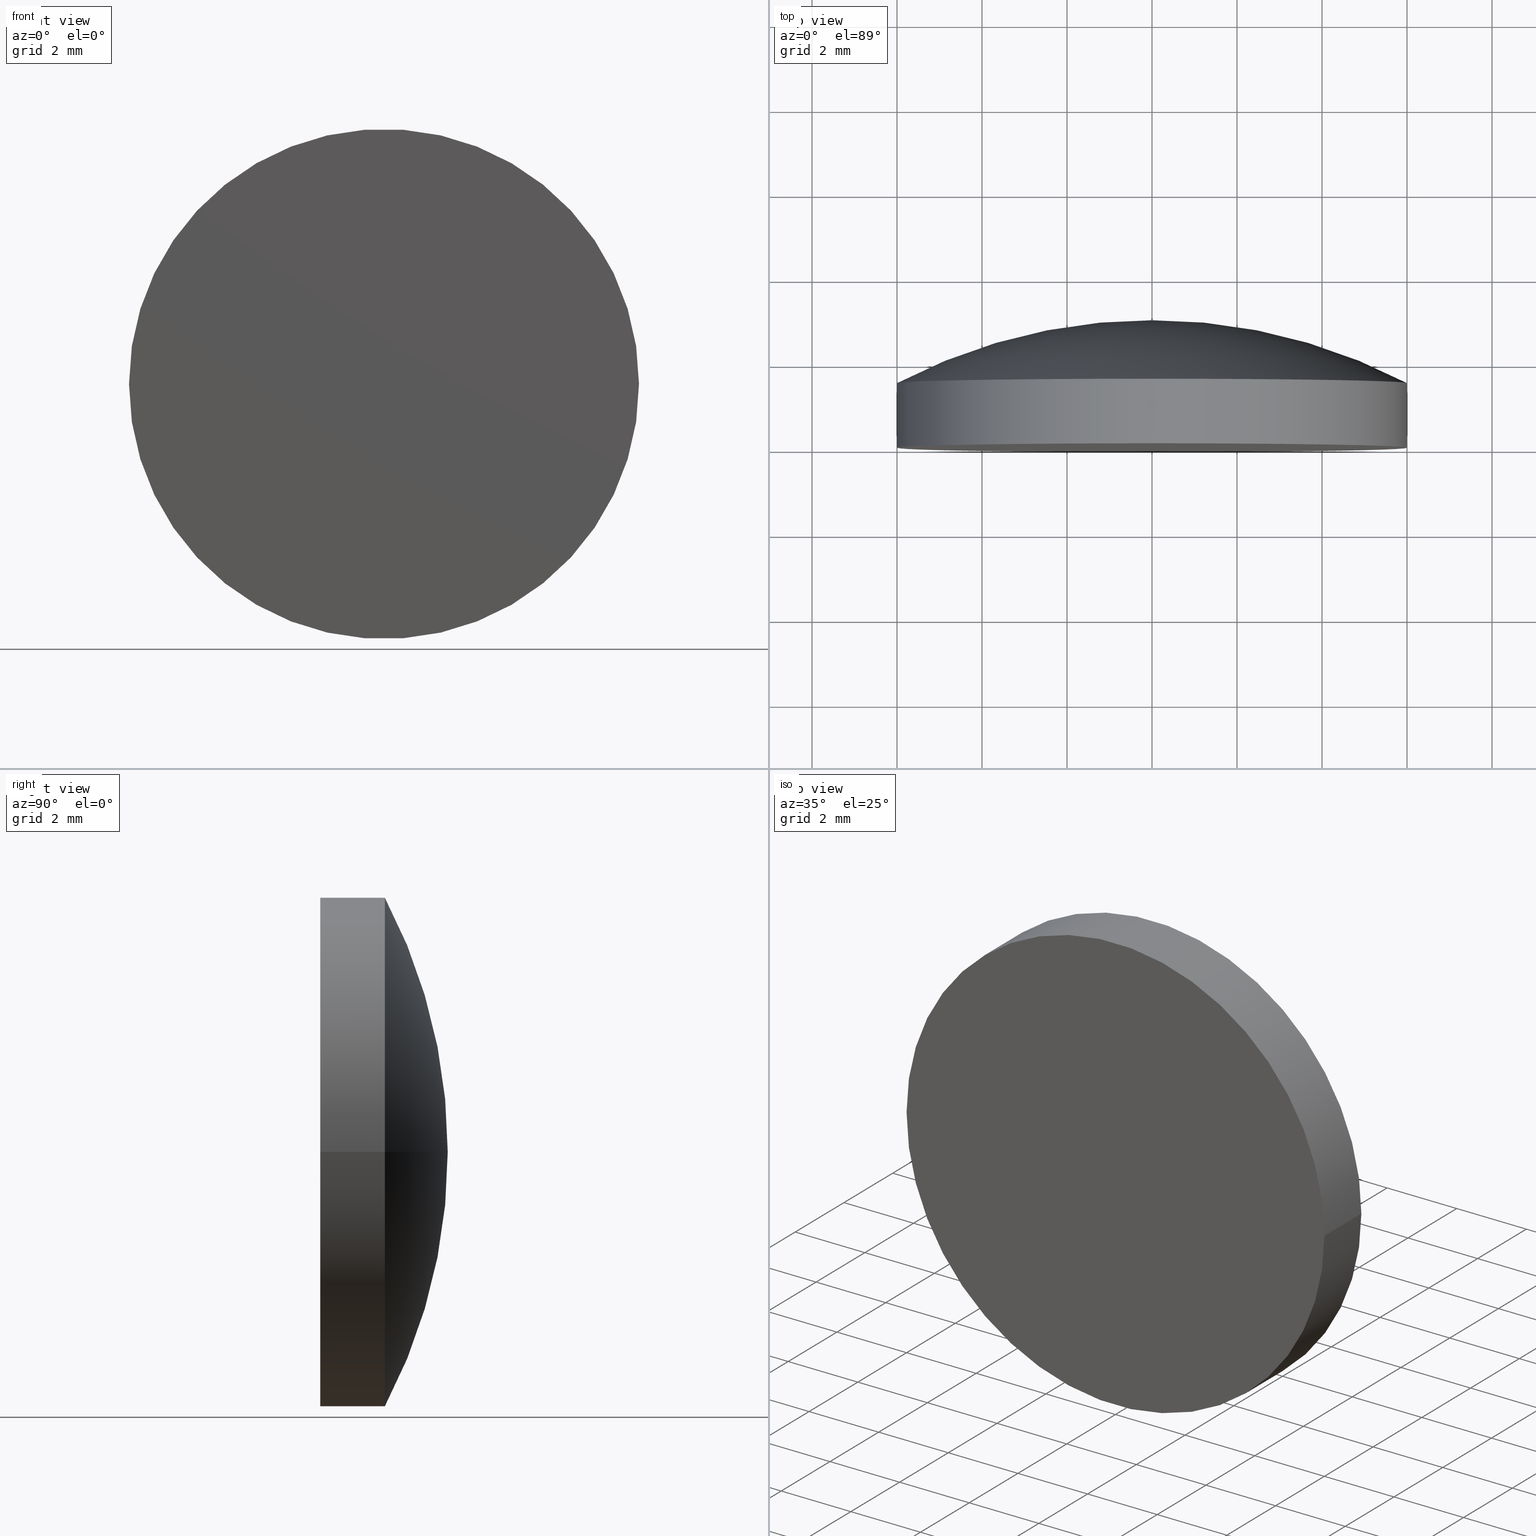
[diagram: canonical four-view strip — front | top / right | iso, engineering-drawing reading convention]
A machine part, canonical four-view strip (front | top / right | iso — engineering-drawing reading convention). The complete STEP part file that produces these views, byte-faithful:
ISO-10303-21;
HEADER;
FILE_DESCRIPTION (( 'STEP AP203' ),
    '1' );
FILE_NAME ('100590.STEP',
    '2024-05-10T01:41:21',
    ( '' ),
    ( '' ),
    'SwSTEP 2.0',
    'SolidWorks 2020',
    '' );
FILE_SCHEMA (( 'CONFIG_CONTROL_DESIGN' ));
ENDSEC;

DATA;
#1 = DATE_AND_TIME ( #108, #200 ) ;
#2 = PRODUCT_DEFINITION_FORMATION_WITH_SPECIFIED_SOURCE ( '�κ�', '', #109, .NOT_KNOWN. ) ;
#3 = TOROIDAL_SURFACE ( 'NONE', #74, -0.001933297626474807631, 12.91000000000000014 ) ;
#4 = EDGE_CURVE ( 'NONE', #38, #37, #21, .T. ) ;
#5 = CYLINDRICAL_SURFACE ( 'NONE', #139, 6.000000000000000000 ) ;
#6 = CIRCLE ( 'NONE', #154, 6.000000000000000000 ) ;
#7 = CARTESIAN_POINT ( 'NONE',  ( 1.789642115925866215E-16, 3.000000000000000000, 0.000000000000000000 ) ) ;
#8 = EDGE_LOOP ( 'NONE', ( #153, #163, #55 ) ) ;
#9 = CIRCLE ( 'NONE', #120, 6.000000000000000000 ) ;
#10 = EDGE_CURVE ( 'NONE', #53, #38, #113, .T. ) ;
#11 = DIRECTION ( 'NONE',  ( -1.000000000000000000, 7.228014483236695816E-17, 0.000000000000000000 ) ) ;
#12 = FACE_OUTER_BOUND ( 'NONE', #138, .T. ) ;
#13 = PERSON_AND_ORGANIZATION_ROLE ( 'creator' ) ;
#14 = COORDINATED_UNIVERSAL_TIME_OFFSET ( 8, 0, .AHEAD. ) ;
#15 = MECHANICAL_CONTEXT ( 'NONE', #23, 'mechanical' ) ;
#16 = PERSON_AND_ORGANIZATION_ROLE ( 'creator' ) ;
#17 = UNCERTAINTY_MEASURE_WITH_UNIT (LENGTH_MEASURE( 1.000000000000000082E-05 ), #145, 'distance_accuracy_value', 'NONE');
#18 = TOROIDAL_SURFACE ( 'NONE', #79, -0.001933297626474807631, 12.91000000000000014 ) ;
#19 = PERSON_AND_ORGANIZATION_ROLE ( 'design_supplier' ) ;
#20 = AXIS2_PLACEMENT_3D ( 'NONE', #179, #25, #152 ) ;
#21 = LINE ( 'NONE', #24, #33 ) ;
#22 = ORIENTED_EDGE ( 'NONE', *, *, #10, .F. ) ;
#23 = APPLICATION_CONTEXT ( 'configuration controlled 3d designs of mechanical parts and assemblies' ) ;
#24 = CARTESIAN_POINT ( 'NONE',  ( -6.000000000000000000, 3.000000000000000444, 0.000000000000000000 ) ) ;
#25 = DIRECTION ( 'NONE',  ( -5.965473719752887796E-17, -1.000000000000000000, 0.000000000000000000 ) ) ;
#26 = EDGE_CURVE ( 'NONE', #53, #97, #83, .T. ) ;
#27 = CIRCLE ( 'NONE', #167, 6.000000000000000000 ) ;
#28 = CARTESIAN_POINT ( 'NONE',  ( 9.067520054024382547E-17, 1.519999999999998685, 0.000000000000000000 ) ) ;
#29 = CARTESIAN_POINT ( 'NONE',  ( 1.789642115925866215E-16, 3.000000000000000000, 0.000000000000000000 ) ) ;
#30 =( GEOMETRIC_REPRESENTATION_CONTEXT ( 3 ) GLOBAL_UNCERTAINTY_ASSIGNED_CONTEXT ( ( #17 ) ) GLOBAL_UNIT_ASSIGNED_CONTEXT ( ( #145, #85, #142 ) ) REPRESENTATION_CONTEXT ( 'NONE', 'WORKASPACE' ) );
#31 = FACE_OUTER_BOUND ( 'NONE', #117, .T. ) ;
#32 = APPLICATION_PROTOCOL_DEFINITION ( 'international standard', 'config_control_design', 1994, #49 ) ;
#33 = VECTOR ( 'NONE', #135, 1000.000000000000000 ) ;
#34 = PRODUCT_DEFINITION_SHAPE ( 'NONE', 'NONE',  #160 ) ;
#35 = CC_DESIGN_DATE_AND_TIME_ASSIGNMENT ( #201, #75, ( #160 ) ) ;
#36 = ADVANCED_FACE ( 'NONE', ( #181 ), #5, .T. ) ;
#37 = VERTEX_POINT ( 'NONE', #71 ) ;
#38 = VERTEX_POINT ( 'NONE', #58 ) ;
#39 = ORIENTED_EDGE ( 'NONE', *, *, #180, .F. ) ;
#40 = DIRECTION ( 'NONE',  ( 5.965473719752887796E-17, 1.000000000000000000, -0.000000000000000000 ) ) ;
#41 = PERSON_AND_ORGANIZATION ( #47, #156 ) ;
#42 = DIRECTION ( 'NONE',  ( 5.965473719752887796E-17, 1.000000000000000000, -0.000000000000000000 ) ) ;
#43 = PERSON_AND_ORGANIZATION ( #47, #156 ) ;
#44 = LOCAL_TIME ( 9, 41, 21.00000000000000000, #94 ) ;
#45 = CALENDAR_DATE ( 2024, 10, 5 ) ;
#46 = COORDINATED_UNIVERSAL_TIME_OFFSET ( 8, 0, .AHEAD. ) ;
#47 = PERSON ( 'δָ��', 'δָ��', 'δָ��', ('δָ��'), ('δָ��'), ('δָ��') ) ;
#48 = AXIS2_PLACEMENT_3D ( 'NONE', #189, #137, #88 ) ;
#49 = APPLICATION_CONTEXT ( 'configuration controlled 3d designs of mechanical parts and assemblies' ) ;
#50 = CC_DESIGN_PERSON_AND_ORGANIZATION_ASSIGNMENT ( #43, #77, ( #109 ) ) ;
#51 = SECURITY_CLASSIFICATION_LEVEL ( 'unclassified' ) ;
#52 = APPROVAL_PERSON_ORGANIZATION ( #184, #197, #158 ) ;
#53 = VERTEX_POINT ( 'NONE', #70 ) ;
#54 = CIRCLE ( 'NONE', #78, 12.91000000000000014 ) ;
#55 = ORIENTED_EDGE ( 'NONE', *, *, #73, .F. ) ;
#56 = LOCAL_TIME ( 9, 41, 21.00000000000000000, #90 ) ;
#57 = CARTESIAN_POINT ( 'NONE',  ( -7.222237291452134449E-32, -1.301042606982605321E-15, 0.000000000000000000 ) ) ;
#58 = CARTESIAN_POINT ( 'NONE',  ( -6.000000000000000000, -9.431141837974319298E-16, 0.000000000000000000 ) ) ;
#59 = DIRECTION ( 'NONE',  ( -1.000000000000000000, 7.228014483236695816E-17, 0.000000000000000000 ) ) ;
#60 = DIRECTION ( 'NONE',  ( 1.000000000000000000, 0.000000000000000000, 0.000000000000000000 ) ) ;
#61 = CARTESIAN_POINT ( 'NONE',  ( -5.908054807098744865E-16, -9.909999855242457301, 0.000000000000000000 ) ) ;
#62 = CARTESIAN_POINT ( 'NONE',  ( 0.000000000000000000, 0.000000000000000000, 0.000000000000000000 ) ) ;
#63 = APPROVAL_STATUS ( 'not_yet_approved' ) ;
#64 = APPROVAL_DATE_TIME ( #157, #84 ) ;
#65 = ADVANCED_FACE ( 'NONE', ( #188 ), #116, .T. ) ;
#66 = APPROVAL_PERSON_ORGANIZATION ( #41, #84, #171 ) ;
#67 = DATE_AND_TIME ( #186, #172 ) ;
#68 = AXIS2_PLACEMENT_3D ( 'NONE', #57, #96, #162 ) ;
#69 = AXIS2_PLACEMENT_3D ( 'NONE', #62, #169, #60 ) ;
#70 = CARTESIAN_POINT ( 'NONE',  ( 6.000000000000000000, -1.658971030167778712E-15, 7.347880794884119736E-16 ) ) ;
#71 = CARTESIAN_POINT ( 'NONE',  ( -6.000000000000000000, 1.519999999999998908, 0.000000000000000000 ) ) ;
#72 = ORIENTED_EDGE ( 'NONE', *, *, #26, .F. ) ;
#73 = EDGE_CURVE ( 'NONE', #37, #191, #140, .T. ) ;
#74 = AXIS2_PLACEMENT_3D ( 'NONE', #107, #193, #143 ) ;
#75 = DATE_TIME_ROLE ( 'creation_date' ) ;
#76 = ADVANCED_BREP_SHAPE_REPRESENTATION ( '100590', ( #123, #69 ), #30 ) ;
#77 = PERSON_AND_ORGANIZATION_ROLE ( 'design_owner' ) ;
#78 = AXIS2_PLACEMENT_3D ( 'NONE', #128, #125, #199 ) ;
#79 = AXIS2_PLACEMENT_3D ( 'NONE', #61, #42, #103 ) ;
#80 = EDGE_CURVE ( 'NONE', #97, #37, #6, .T. ) ;
#81 = PERSON_AND_ORGANIZATION ( #47, #156 ) ;
#82 = ORIENTED_EDGE ( 'NONE', *, *, #106, .F. ) ;
#83 = LINE ( 'NONE', #149, #148 ) ;
#84 = APPROVAL ( #104, 'δָ��' ) ;
#85 =( NAMED_UNIT ( * ) PLANE_ANGLE_UNIT ( ) SI_UNIT ( $, .RADIAN. ) );
#86 = ORIENTED_EDGE ( 'NONE', *, *, #10, .T. ) ;
#87 = DIRECTION ( 'NONE',  ( 5.965473719752887796E-17, 1.000000000000000000, -0.000000000000000000 ) ) ;
#88 = DIRECTION ( 'NONE',  ( -1.000000000000000000, 0.000000000000000000, 0.000000000000000000 ) ) ;
#89 = LOCAL_TIME ( 9, 41, 21.00000000000000000, #14 ) ;
#90 = COORDINATED_UNIVERSAL_TIME_OFFSET ( 8, 0, .AHEAD. ) ;
#91 = CC_DESIGN_PERSON_AND_ORGANIZATION_ASSIGNMENT ( #147, #19, ( #2 ) ) ;
#92 = APPLICATION_PROTOCOL_DEFINITION ( 'international standard', 'config_control_design', 1994, #23 ) ;
#93 = DIRECTION ( 'NONE',  ( 5.965473719752887796E-17, 1.000000000000000000, -0.000000000000000000 ) ) ;
#94 = COORDINATED_UNIVERSAL_TIME_OFFSET ( 8, 0, .AHEAD. ) ;
#95 = PERSON_AND_ORGANIZATION ( #47, #156 ) ;
#96 = DIRECTION ( 'NONE',  ( 5.965473719752887796E-17, 1.000000000000000000, -0.000000000000000000 ) ) ;
#97 = VERTEX_POINT ( 'NONE', #183 ) ;
#98 = ORIENTED_EDGE ( 'NONE', *, *, #198, .F. ) ;
#99 = DIRECTION ( 'NONE',  ( -1.000000000000000000, 7.228014483236695816E-17, 0.000000000000000000 ) ) ;
#100 = ADVANCED_FACE ( 'NONE', ( #12 ), #194, .T. ) ;
#101 = CARTESIAN_POINT ( 'NONE',  ( 1.789642115925866215E-16, 3.000000000000000000, 0.000000000000000000 ) ) ;
#102 = CC_DESIGN_DATE_AND_TIME_ASSIGNMENT ( #67, #146, ( #118 ) ) ;
#103 = DIRECTION ( 'NONE',  ( -1.000000000000000000, 5.965473719752887796E-17, 0.000000000000000000 ) ) ;
#104 = APPROVAL_STATUS ( 'not_yet_approved' ) ;
#105 = APPROVAL_PERSON_ORGANIZATION ( #81, #151, #133 ) ;
#106 = EDGE_CURVE ( 'NONE', #37, #97, #27, .T. ) ;
#107 = CARTESIAN_POINT ( 'NONE',  ( -5.908054807098744865E-16, -9.909999855242457301, 0.000000000000000000 ) ) ;
#108 = CALENDAR_DATE ( 2024, 10, 5 ) ;
#109 = PRODUCT ( '100590', '100590', '', ( #15 ) ) ;
#110 = CALENDAR_DATE ( 2024, 10, 5 ) ;
#111 = PERSON_AND_ORGANIZATION ( #47, #156 ) ;
#112 = PRODUCT_RELATED_PRODUCT_CATEGORY ( 'detail', '', ( #109 ) ) ;
#113 = CIRCLE ( 'NONE', #68, 6.000000000000000000 ) ;
#114 = CC_DESIGN_PERSON_AND_ORGANIZATION_ASSIGNMENT ( #144, #13, ( #160 ) ) ;
#115 = EDGE_LOOP ( 'NONE', ( #134, #121, #82, #164 ) ) ;
#116 = PLANE ( 'NONE',  #20 ) ;
#117 = EDGE_LOOP ( 'NONE', ( #98, #182, #178 ) ) ;
#118 = SECURITY_CLASSIFICATION ( '', '', #51 ) ;
#119 = DIRECTION ( 'NONE',  ( 5.965473719752887796E-17, 1.000000000000000000, -0.000000000000000000 ) ) ;
#120 = AXIS2_PLACEMENT_3D ( 'NONE', #122, #93, #155 ) ;
#121 = ORIENTED_EDGE ( 'NONE', *, *, #26, .T. ) ;
#122 = CARTESIAN_POINT ( 'NONE',  ( -7.222237291452134449E-32, -1.301042606982605321E-15, 0.000000000000000000 ) ) ;
#123 = MANIFOLD_SOLID_BREP ( '��ת1', #196 ) ;
#124 = DIRECTION ( 'NONE',  ( 5.965473719752887796E-17, 1.000000000000000000, -0.000000000000000000 ) ) ;
#125 = DIRECTION ( 'NONE',  ( -1.224646799147353207E-16, 7.305598296293028514E-33, 1.000000000000000000 ) ) ;
#126 = CALENDAR_DATE ( 2024, 10, 5 ) ;
#127 = AXIS2_PLACEMENT_3D ( 'NONE', #101, #124, #59 ) ;
#128 = CARTESIAN_POINT ( 'NONE',  ( -0.001933297626475398304, -9.909999855242457301, -2.367606750061548291E-19 ) ) ;
#129 = ADVANCED_FACE ( 'NONE', ( #170 ), #18, .T. ) ;
#130 = DESIGN_CONTEXT ( 'detailed design', #49, 'design' ) ;
#131 = PERSON_AND_ORGANIZATION_ROLE ( 'classification_officer' ) ;
#132 = CC_DESIGN_PERSON_AND_ORGANIZATION_ASSIGNMENT ( #95, #16, ( #2 ) ) ;
#133 = APPROVAL_ROLE ( '' ) ;
#134 = ORIENTED_EDGE ( 'NONE', *, *, #180, .T. ) ;
#135 = DIRECTION ( 'NONE',  ( 5.965473719752887796E-17, 1.000000000000000000, -0.000000000000000000 ) ) ;
#136 = CC_DESIGN_APPROVAL ( #197, ( #2 ) ) ;
#137 = DIRECTION ( 'NONE',  ( -0.000000000000000000, 0.000000000000000000, -1.000000000000000000 ) ) ;
#138 = EDGE_LOOP ( 'NONE', ( #72, #86, #192, #165 ) ) ;
#139 = AXIS2_PLACEMENT_3D ( 'NONE', #7, #40, #99 ) ;
#140 = CIRCLE ( 'NONE', #48, 12.91000000000000014 ) ;
#141 = DIRECTION ( 'NONE',  ( -1.000000000000000000, 7.228014483236695816E-17, 0.000000000000000000 ) ) ;
#142 =( NAMED_UNIT ( * ) SI_UNIT ( $, .STERADIAN. ) SOLID_ANGLE_UNIT ( ) );
#143 = DIRECTION ( 'NONE',  ( -1.000000000000000000, 5.965473719752887796E-17, 0.000000000000000000 ) ) ;
#144 = PERSON_AND_ORGANIZATION ( #47, #156 ) ;
#145 =( LENGTH_UNIT ( ) NAMED_UNIT ( * ) SI_UNIT ( .MILLI., .METRE. ) );
#146 = DATE_TIME_ROLE ( 'classification_date' ) ;
#147 = PERSON_AND_ORGANIZATION ( #47, #156 ) ;
#148 = VECTOR ( 'NONE', #119, 1000.000000000000000 ) ;
#149 = CARTESIAN_POINT ( 'NONE',  ( 6.000000000000000000, 2.999999999999999556, 7.347880794884119736E-16 ) ) ;
#150 = EDGE_LOOP ( 'NONE', ( #39, #22 ) ) ;
#151 = APPROVAL ( #187, 'δָ��' ) ;
#152 = DIRECTION ( 'NONE',  ( 1.000000000000000000, -5.965473719752887796E-17, 0.000000000000000000 ) ) ;
#153 = ORIENTED_EDGE ( 'NONE', *, *, #106, .T. ) ;
#154 = AXIS2_PLACEMENT_3D ( 'NONE', #166, #168, #141 ) ;
#155 = DIRECTION ( 'NONE',  ( -1.000000000000000000, 5.965473719752889028E-17, 0.000000000000000000 ) ) ;
#156 = ORGANIZATION ( 'δָ��', 'δָ��', '' ) ;
#157 = DATE_AND_TIME ( #45, #56 ) ;
#158 = APPROVAL_ROLE ( '' ) ;
#159 = APPROVAL_DATE_TIME ( #1, #197 ) ;
#160 = PRODUCT_DEFINITION ( 'δ֪', '', #2, #130 ) ;
#161 = APPROVAL_DATE_TIME ( #174, #151 ) ;
#162 = DIRECTION ( 'NONE',  ( -1.000000000000000000, 5.965473719752889028E-17, 0.000000000000000000 ) ) ;
#163 = ORIENTED_EDGE ( 'NONE', *, *, #198, .T. ) ;
#164 = ORIENTED_EDGE ( 'NONE', *, *, #4, .F. ) ;
#165 = ORIENTED_EDGE ( 'NONE', *, *, #80, .F. ) ;
#166 = CARTESIAN_POINT ( 'NONE',  ( 9.067520054024382547E-17, 1.519999999999998685, 0.000000000000000000 ) ) ;
#167 = AXIS2_PLACEMENT_3D ( 'NONE', #28, #87, #11 ) ;
#168 = DIRECTION ( 'NONE',  ( 5.965473719752887796E-17, 1.000000000000000000, -0.000000000000000000 ) ) ;
#169 = DIRECTION ( 'NONE',  ( 0.000000000000000000, 0.000000000000000000, 1.000000000000000000 ) ) ;
#170 = FACE_OUTER_BOUND ( 'NONE', #8, .T. ) ;
#171 = APPROVAL_ROLE ( '' ) ;
#172 = LOCAL_TIME ( 9, 41, 21.00000000000000000, #185 ) ;
#173 = ADVANCED_FACE ( 'NONE', ( #31 ), #3, .T. ) ;
#174 = DATE_AND_TIME ( #110, #44 ) ;
#175 = SHAPE_DEFINITION_REPRESENTATION ( #34, #76 ) ;
#176 = CC_DESIGN_APPROVAL ( #151, ( #118 ) ) ;
#177 = CC_DESIGN_SECURITY_CLASSIFICATION ( #118, ( #2 ) ) ;
#178 = ORIENTED_EDGE ( 'NONE', *, *, #73, .T. ) ;
#179 = CARTESIAN_POINT ( 'NONE',  ( -3.259285789919778530E-32, -5.463582513367925344E-16, 0.000000000000000000 ) ) ;
#180 = EDGE_CURVE ( 'NONE', #38, #53, #9, .T. ) ;
#181 = FACE_OUTER_BOUND ( 'NONE', #115, .T. ) ;
#182 = ORIENTED_EDGE ( 'NONE', *, *, #80, .T. ) ;
#183 = CARTESIAN_POINT ( 'NONE',  ( 6.000000000000000000, 1.519999999999998463, 7.347880794884119736E-16 ) ) ;
#184 = PERSON_AND_ORGANIZATION ( #47, #156 ) ;
#185 = COORDINATED_UNIVERSAL_TIME_OFFSET ( 8, 0, .AHEAD. ) ;
#186 = CALENDAR_DATE ( 2024, 10, 5 ) ;
#187 = APPROVAL_STATUS ( 'not_yet_approved' ) ;
#188 = FACE_OUTER_BOUND ( 'NONE', #150, .T. ) ;
#189 = CARTESIAN_POINT ( 'NONE',  ( 0.001933297626474216740, -9.909999855242457301, 0.000000000000000000 ) ) ;
#190 = CC_DESIGN_APPROVAL ( #84, ( #160 ) ) ;
#191 = VERTEX_POINT ( 'NONE', #29 ) ;
#192 = ORIENTED_EDGE ( 'NONE', *, *, #4, .T. ) ;
#193 = DIRECTION ( 'NONE',  ( 5.965473719752887796E-17, 1.000000000000000000, -0.000000000000000000 ) ) ;
#194 = CYLINDRICAL_SURFACE ( 'NONE', #127, 6.000000000000000000 ) ;
#195 = CC_DESIGN_PERSON_AND_ORGANIZATION_ASSIGNMENT ( #111, #131, ( #118 ) ) ;
#196 = CLOSED_SHELL ( 'NONE', ( #36, #129, #173, #65, #100 ) ) ;
#197 = APPROVAL ( #63, 'δָ��' ) ;
#198 = EDGE_CURVE ( 'NONE', #97, #191, #54, .T. ) ;
#199 = DIRECTION ( 'NONE',  ( 1.000000000000000000, 0.000000000000000000, 1.224646799147353207E-16 ) ) ;
#200 = LOCAL_TIME ( 9, 41, 21.00000000000000000, #46 ) ;
#201 = DATE_AND_TIME ( #126, #89 ) ;
ENDSEC;
END-ISO-10303-21;
